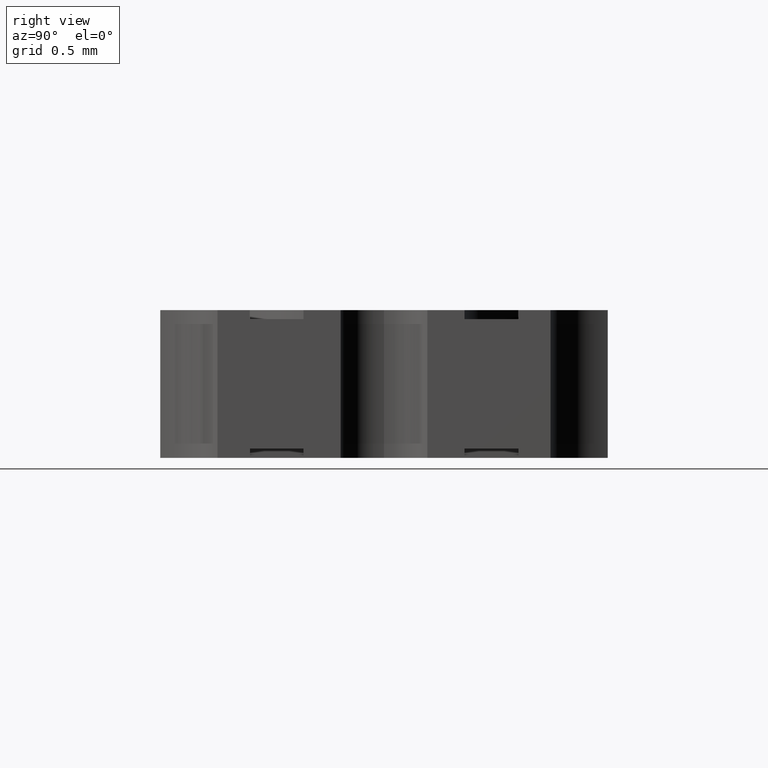
[diagram: clean part render]
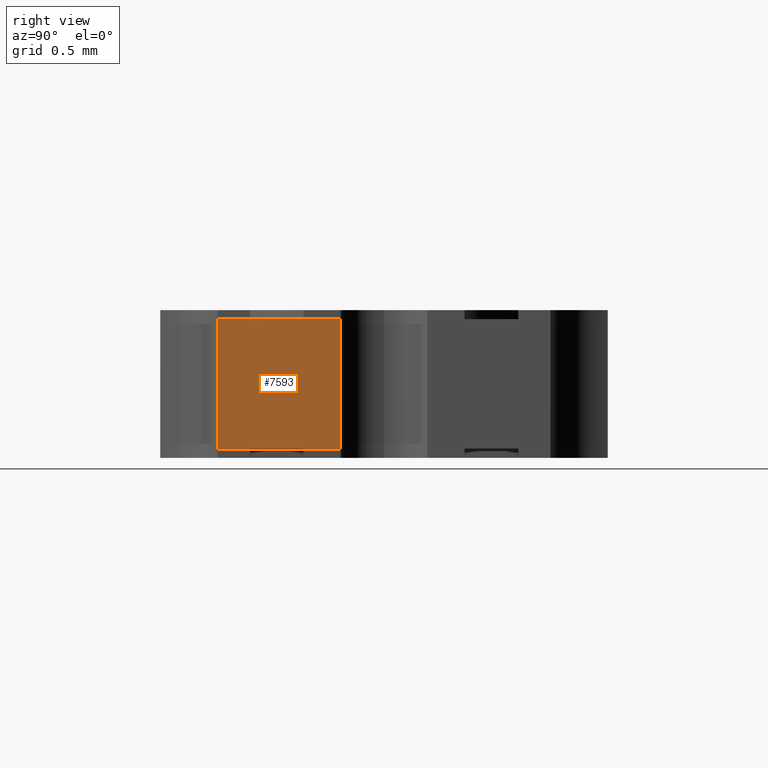
[diagram: same view with one face highlighted and labeled with its STEP entity id]
A machine part, right view. The second image highlights one B-rep face of the part: STEP entity #7593.
In plain terms, the highlighted planar face has unit normal (1, 0, -0).
Its self-contained STEP definition (entity closure, byte-faithful):
#170 = DIRECTION ( 'NONE',  ( 0.000000000000000000, -1.000000000000000000, 0.000000000000000000 ) ) ;
#345 = LINE ( 'NONE', #1741, #3726 ) ;
#580 = DIRECTION ( 'NONE',  ( 1.000000000000000000, 0.000000000000000000, -0.000000000000000000 ) ) ;
#840 = DIRECTION ( 'NONE',  ( -0.000000000000000000, 0.000000000000000000, -1.000000000000000000 ) ) ;
#861 = VERTEX_POINT ( 'NONE', #5011 ) ;
#862 = LINE ( 'NONE', #3719, #7038 ) ;
#1251 = VERTEX_POINT ( 'NONE', #5603 ) ;
#1374 = CARTESIAN_POINT ( 'NONE',  ( 0.06250000000204798678, -0.05249999999976831533, 0.03100000000000000325 ) ) ;
#1741 = CARTESIAN_POINT ( 'NONE',  ( 0.06250000000204798678, -0.05249999999976831533, 0.03100000000000000325 ) ) ;
#2834 = ORIENTED_EDGE ( 'NONE', *, *, #3327, .F. ) ;
#3161 = VERTEX_POINT ( 'NONE', #9197 ) ;
#3327 = EDGE_CURVE ( 'NONE', #861, #5619, #862, .T. ) ;
#3332 = CARTESIAN_POINT ( 'NONE',  ( 0.06250000000204798678, -0.009682458352590952652, 0.03100000000000000325 ) ) ;
#3334 = DIRECTION ( 'NONE',  ( -0.000000000000000000, -0.000000000000000000, -1.000000000000000000 ) ) ;
#3719 = CARTESIAN_POINT ( 'NONE',  ( 0.06250000000204798678, -0.05249999999976831533, 0.002000000000000000042 ) ) ;
#3726 = VECTOR ( 'NONE', #6002, 39.37007874015748143 ) ;
#3834 = EDGE_CURVE ( 'NONE', #3161, #5619, #4824, .T. ) ;
#4779 = CARTESIAN_POINT ( 'NONE',  ( 0.06250000000204798678, -0.03720294145898997429, 0.03100000000000000325 ) ) ;
#4824 = LINE ( 'NONE', #4779, #6309 ) ;
#4950 = EDGE_LOOP ( 'NONE', ( #2834, #6969, #9192, #6863 ) ) ;
#5003 = EDGE_CURVE ( 'NONE', #1251, #3161, #345, .T. ) ;
#5011 = CARTESIAN_POINT ( 'NONE',  ( 0.06250000000204798678, -0.009682458352590952652, 0.002000000000000000042 ) ) ;
#5519 = DIRECTION ( 'NONE',  ( -0.000000000000000000, -0.000000000000000000, -1.000000000000000000 ) ) ;
#5603 = CARTESIAN_POINT ( 'NONE',  ( 0.06250000000204798678, -0.009682458352590952652, 0.03100000000000000325 ) ) ;
#5619 = VERTEX_POINT ( 'NONE', #7890 ) ;
#6002 = DIRECTION ( 'NONE',  ( 0.000000000000000000, -1.000000000000000000, 0.000000000000000000 ) ) ;
#6309 = VECTOR ( 'NONE', #3334, 39.37007874015748143 ) ;
#6504 = EDGE_CURVE ( 'NONE', #1251, #861, #6972, .T. ) ;
#6643 = AXIS2_PLACEMENT_3D ( 'NONE', #1374, #580, #840 ) ;
#6863 = ORIENTED_EDGE ( 'NONE', *, *, #3834, .T. ) ;
#6969 = ORIENTED_EDGE ( 'NONE', *, *, #6504, .F. ) ;
#6972 = LINE ( 'NONE', #3332, #8510 ) ;
#7038 = VECTOR ( 'NONE', #170, 39.37007874015748143 ) ;
#7247 = PLANE ( 'NONE',  #6643 ) ;
#7593 = ADVANCED_FACE ( 'NONE', ( #7778 ), #7247, .T. ) ;
#7778 = FACE_OUTER_BOUND ( 'NONE', #4950, .T. ) ;
#7890 = CARTESIAN_POINT ( 'NONE',  ( 0.06250000000204798678, -0.03720294145898997429, 0.002000000000000000042 ) ) ;
#8510 = VECTOR ( 'NONE', #5519, 39.37007874015748143 ) ;
#9192 = ORIENTED_EDGE ( 'NONE', *, *, #5003, .T. ) ;
#9197 = CARTESIAN_POINT ( 'NONE',  ( 0.06250000000204798678, -0.03720294145898997429, 0.03100000000000000325 ) ) ;